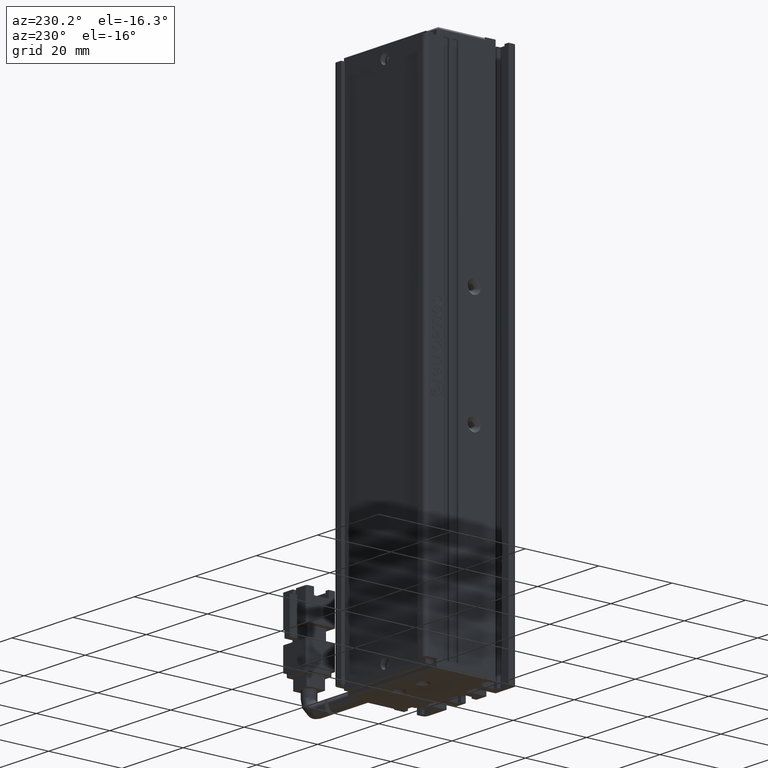
[diagram: clean part render]
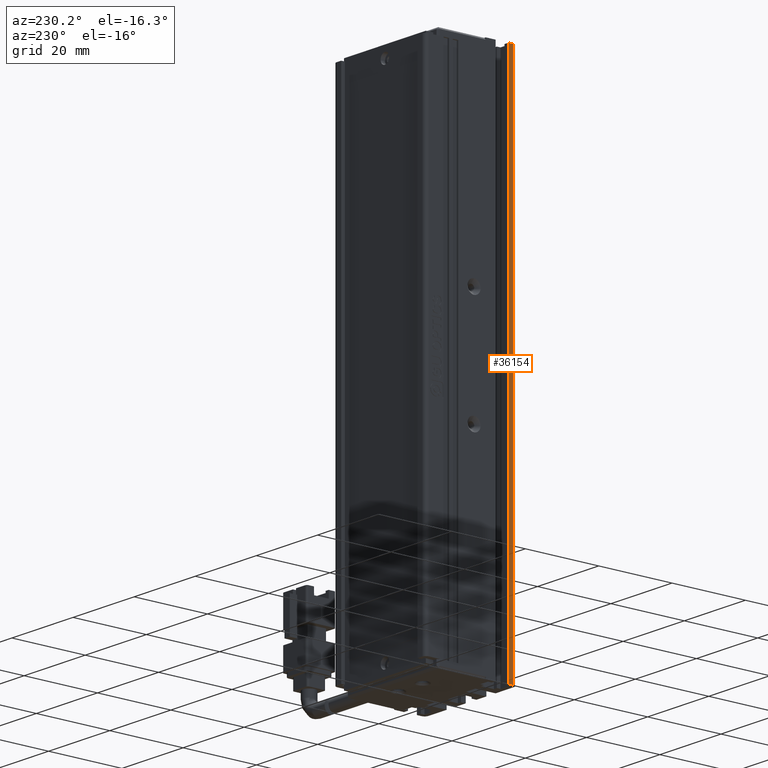
[diagram: same view with one face highlighted and labeled with its STEP entity id]
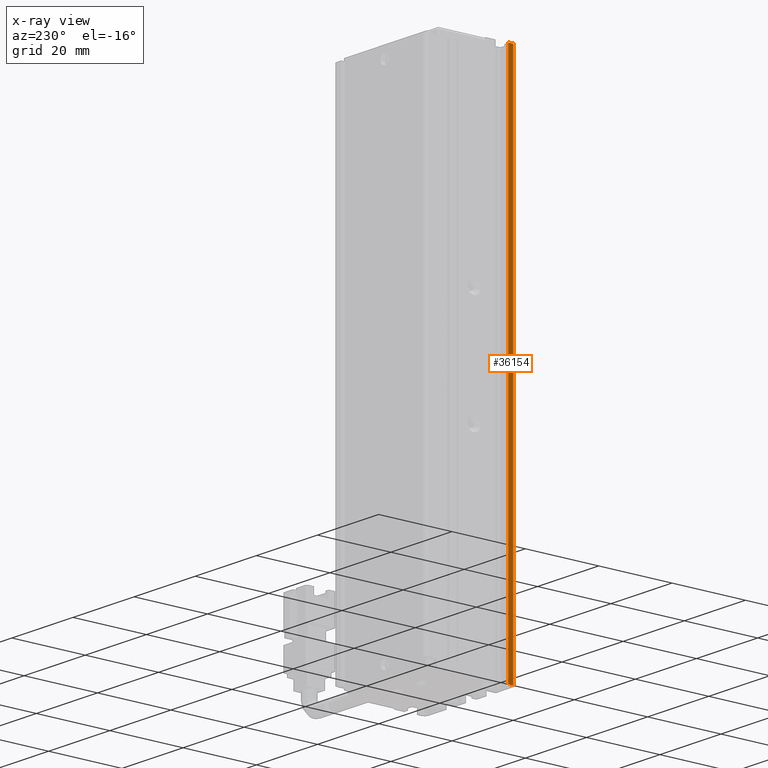
[diagram: x-ray of the same camera — body ghosted, the highlighted face saturated]
A machine part, auxiliary view. The second image highlights one B-rep face of the part: STEP entity #36154.
The next image is the same camera in x-ray: the body ghosted, the highlighted face saturated — about 0% of this face is hidden behind the body in this view.
In plain terms, the highlighted planar face has unit normal (-1, 0, 0).
Its self-contained STEP definition (entity closure, byte-faithful):
#630 = ORIENTED_EDGE ( 'NONE', *, *, #3142, .F. ) ;
#1595 = EDGE_CURVE ( 'NONE', #6263, #28270, #17663, .T. ) ;
#3142 = EDGE_CURVE ( 'NONE', #32669, #21888, #10216, .T. ) ;
#4778 = DIRECTION ( 'NONE',  ( -0.0000000000000000000, -0.0000000000000000000, -1.000000000000000000 ) ) ;
#5501 = PLANE ( 'NONE',  #28599 ) ;
#6263 = VERTEX_POINT ( 'NONE', #12981 ) ;
#6891 = VECTOR ( 'NONE', #12342, 1000.000000000000000 ) ;
#8185 = ORIENTED_EDGE ( 'NONE', *, *, #1595, .T. ) ;
#8336 = DIRECTION ( 'NONE',  ( 0.0000000000000000000, 1.000000000000000000, -0.0000000000000000000 ) ) ;
#9304 = ORIENTED_EDGE ( 'NONE', *, *, #35525, .T. ) ;
#10216 = LINE ( 'NONE', #24853, #32187 ) ;
#10631 = EDGE_LOOP ( 'NONE', ( #9304, #8185, #32193, #630 ) ) ;
#12342 = DIRECTION ( 'NONE',  ( -0.0000000000000000000, -1.000000000000000000, 0.0000000000000000000 ) ) ;
#12981 = CARTESIAN_POINT ( 'NONE',  ( 25.92537974683541800, 12.99594479660387200, -45.00000000000000000 ) ) ;
#17023 = CARTESIAN_POINT ( 'NONE',  ( 25.92537974683541800, 7.083797468354437600, -45.00000000000000000 ) ) ;
#17663 = LINE ( 'NONE', #25104, #25314 ) ;
#19492 = VECTOR ( 'NONE', #8336, 1000.000000000000000 ) ;
#19930 = DIRECTION ( 'NONE',  ( 0.0000000000000000000, 0.0000000000000000000, 1.000000000000000000 ) ) ;
#21282 = LINE ( 'NONE', #36964, #19492 ) ;
#21888 = VERTEX_POINT ( 'NONE', #30949 ) ;
#23144 = CARTESIAN_POINT ( 'NONE',  ( 25.92537974683541800, 12.99594479660387200, -185.0000000000000000 ) ) ;
#24853 = CARTESIAN_POINT ( 'NONE',  ( 25.92537974683542100, 11.69594479660387000, -45.00000000000000000 ) ) ;
#25104 = CARTESIAN_POINT ( 'NONE',  ( 25.92537974683541800, 12.99594479660387200, -45.00000000000000000 ) ) ;
#25314 = VECTOR ( 'NONE', #27963, 1000.000000000000000 ) ;
#26037 = CARTESIAN_POINT ( 'NONE',  ( 25.92537974683542100, 11.69594479660387000, -45.00000000000000000 ) ) ;
#27357 = EDGE_CURVE ( 'NONE', #28270, #21888, #33824, .T. ) ;
#27963 = DIRECTION ( 'NONE',  ( -0.0000000000000000000, -0.0000000000000000000, -1.000000000000000000 ) ) ;
#28270 = VERTEX_POINT ( 'NONE', #23144 ) ;
#28599 = AXIS2_PLACEMENT_3D ( 'NONE', #17023, #37166, #19930 ) ;
#29519 = CARTESIAN_POINT ( 'NONE',  ( 25.92537974683541800, 7.083797468354437600, -185.0000000000000000 ) ) ;
#30949 = CARTESIAN_POINT ( 'NONE',  ( 25.92537974683542100, 11.69594479660387000, -185.0000000000000000 ) ) ;
#32187 = VECTOR ( 'NONE', #4778, 1000.000000000000000 ) ;
#32193 = ORIENTED_EDGE ( 'NONE', *, *, #27357, .T. ) ;
#32669 = VERTEX_POINT ( 'NONE', #26037 ) ;
#33824 = LINE ( 'NONE', #29519, #6891 ) ;
#35525 = EDGE_CURVE ( 'NONE', #32669, #6263, #21282, .T. ) ;
#36124 = FACE_OUTER_BOUND ( 'NONE', #10631, .T. ) ;
#36154 = ADVANCED_FACE ( 'NONE', ( #36124 ), #5501, .T. ) ;
#36964 = CARTESIAN_POINT ( 'NONE',  ( 25.92537974683541800, 7.083797468354437600, -45.00000000000000000 ) ) ;
#37166 = DIRECTION ( 'NONE',  ( -1.000000000000000000, 0.0000000000000000000, 0.0000000000000000000 ) ) ;